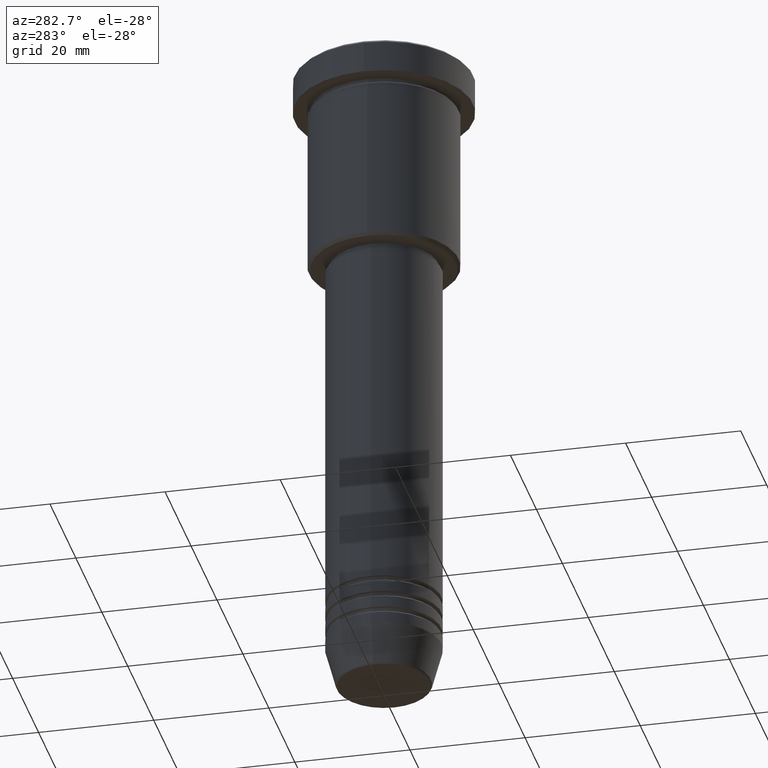
[diagram: clean part render]
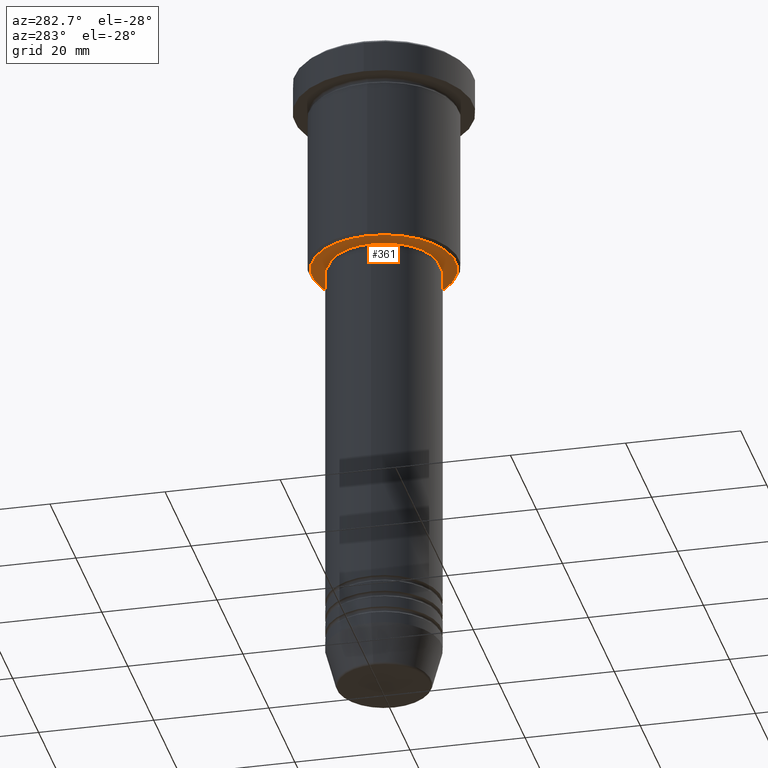
[diagram: same view with one face highlighted and labeled with its STEP entity id]
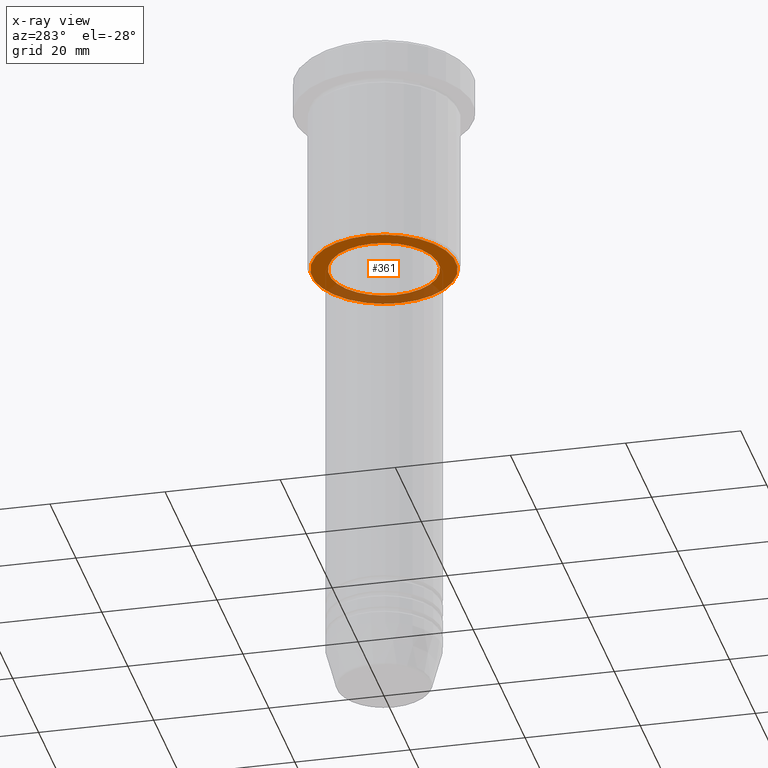
[diagram: x-ray of the same camera — body ghosted, the highlighted face saturated]
A machine part, auxiliary view. The second image highlights one B-rep face of the part: STEP entity #361.
The next image is the same camera in x-ray: the body ghosted, the highlighted face saturated — about 30% of this face is hidden behind the body in this view.
In plain terms, the highlighted planar face has unit normal (0, 0, -1).
Its self-contained STEP definition (entity closure, byte-faithful):
#23 = DIRECTION ( 'NONE',  ( -1.000000000000000000, 0.000000000000000000, 0.000000000000000000 ) ) ;
#78 = VERTEX_POINT ( 'NONE', #630 ) ;
#80 = VERTEX_POINT ( 'NONE', #1105 ) ;
#123 = ORIENTED_EDGE ( 'NONE', *, *, #246, .T. ) ;
#137 = DIRECTION ( 'NONE',  ( 1.000000000000000000, 0.000000000000000000, 0.000000000000000000 ) ) ;
#160 = EDGE_CURVE ( 'NONE', #912, #664, #1084, .T. ) ;
#205 = CARTESIAN_POINT ( 'NONE',  ( 0.000000000000000000, 0.000000000000000000, -36.00000000000000711 ) ) ;
#233 = EDGE_CURVE ( 'NONE', #78, #80, #898, .T. ) ;
#246 = EDGE_CURVE ( 'NONE', #80, #78, #412, .T. ) ;
#272 = DIRECTION ( 'NONE',  ( 0.000000000000000000, 0.000000000000000000, -1.000000000000000000 ) ) ;
#361 = ADVANCED_FACE ( 'NONE', ( #623, #531 ), #998, .T. ) ;
#366 = DIRECTION ( 'NONE',  ( -0.000000000000000000, -0.000000000000000000, 1.000000000000000000 ) ) ;
#389 = AXIS2_PLACEMENT_3D ( 'NONE', #205, #366, #1031 ) ;
#412 = CIRCLE ( 'NONE', #1045, 9.500000000000000000 ) ;
#478 = DIRECTION ( 'NONE',  ( 0.000000000000000000, 0.000000000000000000, -1.000000000000000000 ) ) ;
#494 = CARTESIAN_POINT ( 'NONE',  ( 0.000000000000000000, 0.000000000000000000, -36.00000000000000711 ) ) ;
#531 = FACE_BOUND ( 'NONE', #930, .T. ) ;
#544 = ORIENTED_EDGE ( 'NONE', *, *, #604, .T. ) ;
#568 = CARTESIAN_POINT ( 'NONE',  ( 0.000000000000000000, 0.000000000000000000, -36.00000000000000711 ) ) ;
#578 = ORIENTED_EDGE ( 'NONE', *, *, #160, .T. ) ;
#598 = DIRECTION ( 'NONE',  ( -0.000000000000000000, -0.000000000000000000, 1.000000000000000000 ) ) ;
#604 = EDGE_CURVE ( 'NONE', #664, #912, #690, .T. ) ;
#619 = ORIENTED_EDGE ( 'NONE', *, *, #233, .T. ) ;
#623 = FACE_OUTER_BOUND ( 'NONE', #1038, .T. ) ;
#630 = CARTESIAN_POINT ( 'NONE',  ( 9.500000000000000000, 0.000000000000000000, -36.00000000000000711 ) ) ;
#636 = CARTESIAN_POINT ( 'NONE',  ( 12.49999999999999645, 0.000000000000000000, -36.00000000000000711 ) ) ;
#651 = AXIS2_PLACEMENT_3D ( 'NONE', #568, #847, #23 ) ;
#664 = VERTEX_POINT ( 'NONE', #1140 ) ;
#690 = CIRCLE ( 'NONE', #805, 12.49999999999999645 ) ;
#800 = DIRECTION ( 'NONE',  ( -1.000000000000000000, 0.000000000000000000, -0.000000000000000000 ) ) ;
#805 = AXIS2_PLACEMENT_3D ( 'NONE', #494, #478, #945 ) ;
#847 = DIRECTION ( 'NONE',  ( 0.000000000000000000, 0.000000000000000000, -1.000000000000000000 ) ) ;
#898 = CIRCLE ( 'NONE', #389, 9.500000000000000000 ) ;
#912 = VERTEX_POINT ( 'NONE', #636 ) ;
#929 = CARTESIAN_POINT ( 'NONE',  ( 0.000000000000000000, 0.000000000000000000, -36.00000000000000711 ) ) ;
#930 = EDGE_LOOP ( 'NONE', ( #619, #123 ) ) ;
#945 = DIRECTION ( 'NONE',  ( -1.000000000000000000, 0.000000000000000000, 0.000000000000000000 ) ) ;
#998 = PLANE ( 'NONE',  #1116 ) ;
#1031 = DIRECTION ( 'NONE',  ( 1.000000000000000000, 0.000000000000000000, 0.000000000000000000 ) ) ;
#1038 = EDGE_LOOP ( 'NONE', ( #578, #544 ) ) ;
#1045 = AXIS2_PLACEMENT_3D ( 'NONE', #929, #598, #137 ) ;
#1084 = CIRCLE ( 'NONE', #651, 12.49999999999999645 ) ;
#1105 = CARTESIAN_POINT ( 'NONE',  ( -9.500000000000000000, 1.163414459189985485E-15, -36.00000000000000711 ) ) ;
#1116 = AXIS2_PLACEMENT_3D ( 'NONE', #1160, #272, #800 ) ;
#1140 = CARTESIAN_POINT ( 'NONE',  ( -12.49999999999999645, 1.561424668912875111E-15, -36.00000000000000711 ) ) ;
#1160 = CARTESIAN_POINT ( 'NONE',  ( 0.000000000000000000, 13.00000000000000000, -36.00000000000000711 ) ) ;